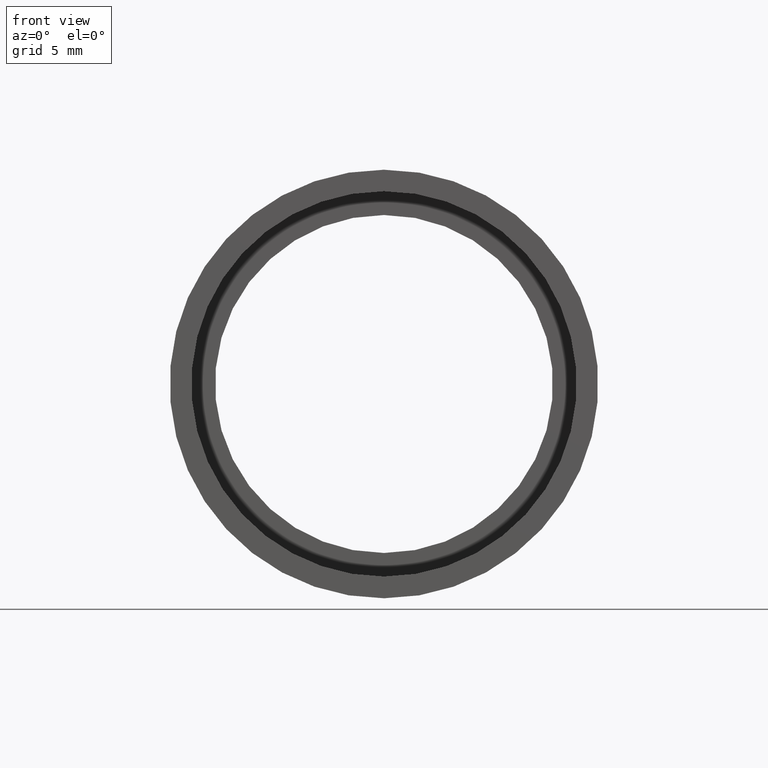
[diagram: clean part render]
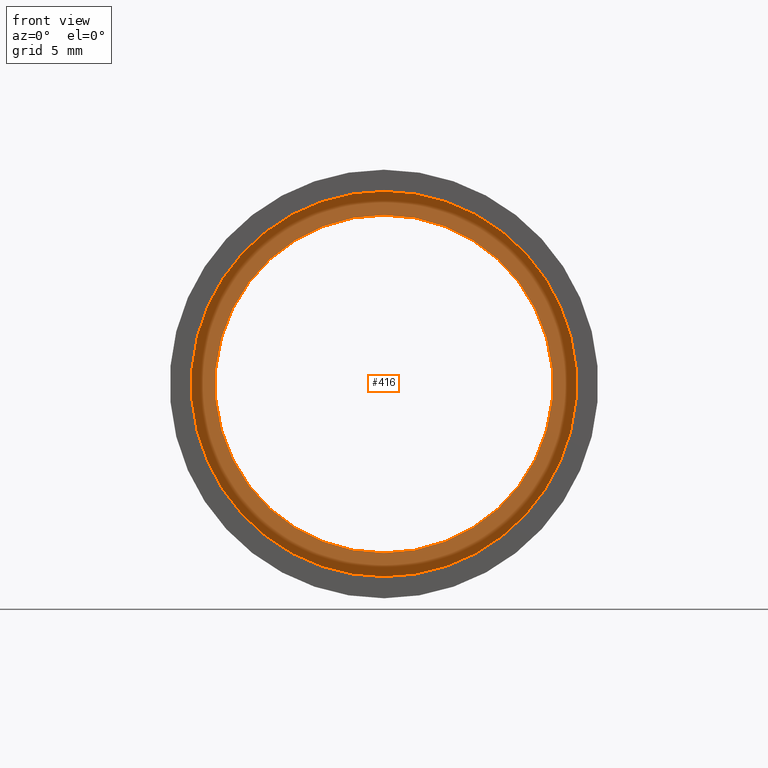
[diagram: same view with one face highlighted and labeled with its STEP entity id]
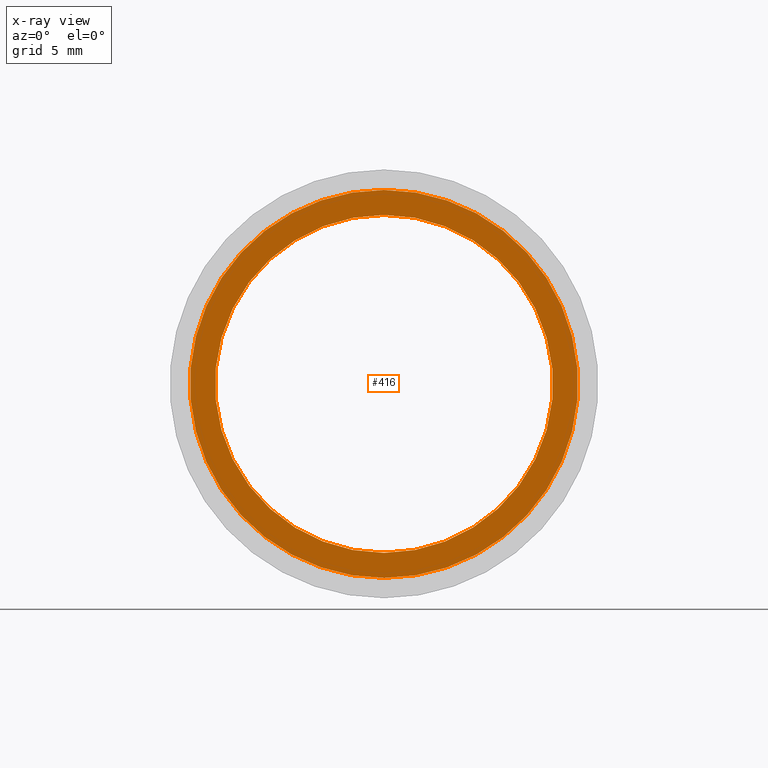
[diagram: x-ray of the same camera — body ghosted, the highlighted face saturated]
A machine part, front view. The second image highlights one B-rep face of the part: STEP entity #416.
The next image is the same camera in x-ray: the body ghosted, the highlighted face saturated — about 0% of this face is hidden behind the body in this view.
In plain terms, the highlighted planar face has unit normal (-0, 1, 0).
Its self-contained STEP definition (entity closure, byte-faithful):
#14 = DIRECTION ( 'NONE',  ( 0.0000000000000000000, 0.0000000000000000000, 1.000000000000000000 ) ) ;
#16 = EDGE_CURVE ( 'NONE', #353, #343, #382, .T. ) ;
#43 = EDGE_LOOP ( 'NONE', ( #575, #124 ) ) ;
#53 = AXIS2_PLACEMENT_3D ( 'NONE', #92, #522, #467 ) ;
#73 = ORIENTED_EDGE ( 'NONE', *, *, #323, .F. ) ;
#92 = CARTESIAN_POINT ( 'NONE',  ( 0.0000000000000000000, 5.499999999999976900, 0.0000000000000000000 ) ) ;
#124 = ORIENTED_EDGE ( 'NONE', *, *, #16, .T. ) ;
#141 = DIRECTION ( 'NONE',  ( 0.0000000000000000000, 0.0000000000000000000, 1.000000000000000000 ) ) ;
#144 = EDGE_CURVE ( 'NONE', #343, #353, #618, .T. ) ;
#152 = FACE_BOUND ( 'NONE', #43, .T. ) ;
#169 = ORIENTED_EDGE ( 'NONE', *, *, #327, .F. ) ;
#174 = CARTESIAN_POINT ( 'NONE',  ( 0.0000000000000000000, 5.499999999999976900, 0.0000000000000000000 ) ) ;
#187 = CARTESIAN_POINT ( 'NONE',  ( 0.0000000000000000000, 5.499999999999976900, 0.0000000000000000000 ) ) ;
#241 = VERTEX_POINT ( 'NONE', #620 ) ;
#251 = PLANE ( 'NONE',  #317 ) ;
#265 = VERTEX_POINT ( 'NONE', #374 ) ;
#283 = AXIS2_PLACEMENT_3D ( 'NONE', #187, #384, #579 ) ;
#287 = CARTESIAN_POINT ( 'NONE',  ( 1.530808498934193900E-015, 5.499999999999976900, -12.50000000000002000 ) ) ;
#312 = EDGE_LOOP ( 'NONE', ( #73, #169 ) ) ;
#317 = AXIS2_PLACEMENT_3D ( 'NONE', #336, #441, #14 ) ;
#323 = EDGE_CURVE ( 'NONE', #241, #265, #589, .T. ) ;
#327 = EDGE_CURVE ( 'NONE', #265, #241, #342, .T. ) ;
#336 = CARTESIAN_POINT ( 'NONE',  ( 12.50000000000002000, 5.499999999999984000, 0.0000000000000000000 ) ) ;
#342 = CIRCLE ( 'NONE', #433, 14.35000000000001900 ) ;
#343 = VERTEX_POINT ( 'NONE', #430 ) ;
#347 = AXIS2_PLACEMENT_3D ( 'NONE', #174, #569, #566 ) ;
#353 = VERTEX_POINT ( 'NONE', #287 ) ;
#374 = CARTESIAN_POINT ( 'NONE',  ( 1.757368156776454300E-015, 5.499999999999976900, -14.35000000000001900 ) ) ;
#382 = CIRCLE ( 'NONE', #53, 12.50000000000002000 ) ;
#384 = DIRECTION ( 'NONE',  ( -0.0000000000000000000, 1.000000000000000000, -0.0000000000000000000 ) ) ;
#416 = ADVANCED_FACE ( 'NONE', ( #568, #152 ), #251, .F. ) ;
#430 = CARTESIAN_POINT ( 'NONE',  ( 0.0000000000000000000, 5.499999999999976900, 12.50000000000002000 ) ) ;
#432 = CARTESIAN_POINT ( 'NONE',  ( 0.0000000000000000000, 5.499999999999976900, 0.0000000000000000000 ) ) ;
#433 = AXIS2_PLACEMENT_3D ( 'NONE', #432, #479, #141 ) ;
#441 = DIRECTION ( 'NONE',  ( -0.0000000000000000000, 1.000000000000000000, 0.0000000000000000000 ) ) ;
#467 = DIRECTION ( 'NONE',  ( 0.0000000000000000000, 0.0000000000000000000, 1.000000000000000000 ) ) ;
#479 = DIRECTION ( 'NONE',  ( -0.0000000000000000000, 1.000000000000000000, -0.0000000000000000000 ) ) ;
#522 = DIRECTION ( 'NONE',  ( -0.0000000000000000000, 1.000000000000000000, -0.0000000000000000000 ) ) ;
#566 = DIRECTION ( 'NONE',  ( 0.0000000000000000000, 0.0000000000000000000, 1.000000000000000000 ) ) ;
#568 = FACE_OUTER_BOUND ( 'NONE', #312, .T. ) ;
#569 = DIRECTION ( 'NONE',  ( -0.0000000000000000000, 1.000000000000000000, -0.0000000000000000000 ) ) ;
#575 = ORIENTED_EDGE ( 'NONE', *, *, #144, .T. ) ;
#579 = DIRECTION ( 'NONE',  ( 0.0000000000000000000, 0.0000000000000000000, 1.000000000000000000 ) ) ;
#589 = CIRCLE ( 'NONE', #283, 14.35000000000001900 ) ;
#618 = CIRCLE ( 'NONE', #347, 12.50000000000002000 ) ;
#620 = CARTESIAN_POINT ( 'NONE',  ( 0.0000000000000000000, 5.499999999999976900, 14.35000000000001900 ) ) ;